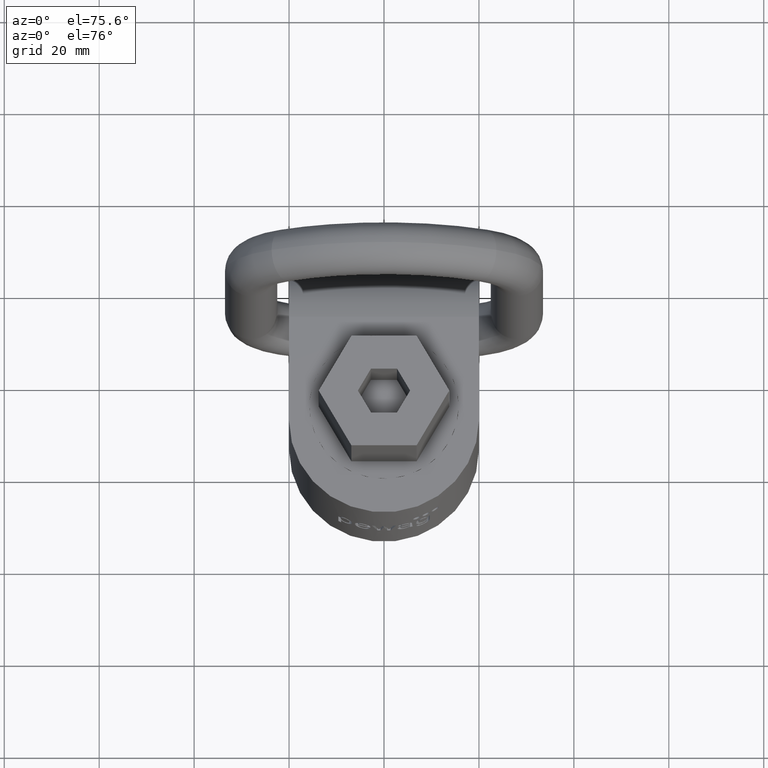
[diagram: clean part render]
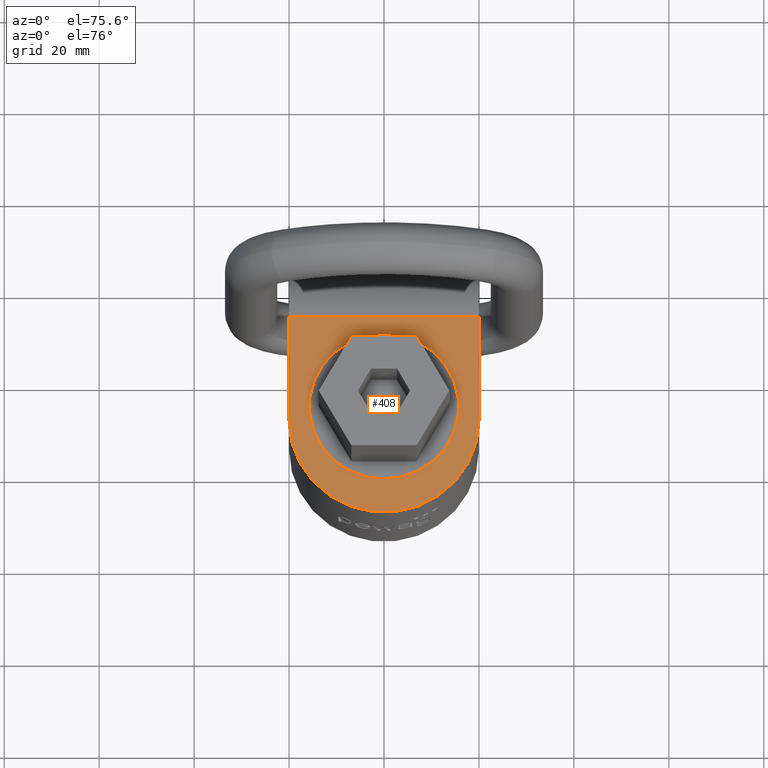
[diagram: same view with one face highlighted and labeled with its STEP entity id]
A machine part, auxiliary view. The second image highlights one B-rep face of the part: STEP entity #408.
In plain terms, the highlighted planar face has unit normal (0, -0, -1).
Its self-contained STEP definition (entity closure, byte-faithful):
#348=PLANE('',#2451);
#408=ADVANCED_FACE('',(#577,#578),#348,.F.);
#577=FACE_BOUND('',#636,.T.);
#578=FACE_BOUND('',#637,.T.);
#636=EDGE_LOOP('',(#1198,#1199,#1200,#1201));
#637=EDGE_LOOP('',(#1202));
#796=LINE('',#3805,#922);
#797=LINE('',#3807,#923);
#798=LINE('',#3809,#924);
#922=VECTOR('',#2627,1.);
#923=VECTOR('',#2628,1.);
#924=VECTOR('',#2629,1.);
#1100=CIRCLE('',#2446,20.);
#1102=CIRCLE('',#2450,15.746709909405);
#1198=ORIENTED_EDGE('',*,*,#2007,.T.);
#1199=ORIENTED_EDGE('',*,*,#2015,.F.);
#1200=ORIENTED_EDGE('',*,*,#2016,.T.);
#1201=ORIENTED_EDGE('',*,*,#2017,.T.);
#1202=ORIENTED_EDGE('',*,*,#2018,.F.);
#1797=VERTEX_POINT('',#3674);
#1798=VERTEX_POINT('',#3676);
#1804=VERTEX_POINT('',#3806);
#1805=VERTEX_POINT('',#3808);
#1806=VERTEX_POINT('',#3811);
#2007=EDGE_CURVE('',#1798,#1797,#1100,.T.);
#2015=EDGE_CURVE('',#1804,#1797,#796,.T.);
#2016=EDGE_CURVE('',#1804,#1805,#797,.T.);
#2017=EDGE_CURVE('',#1805,#1798,#798,.T.);
#2018=EDGE_CURVE('',#1806,#1806,#1102,.T.);
#2446=AXIS2_PLACEMENT_3D('',#3675,#2615,#2616);
#2450=AXIS2_PLACEMENT_3D('',#3810,#2630,#2631);
#2451=AXIS2_PLACEMENT_3D('',#3812,#2632,#2633);
#2615=DIRECTION('',(0.,3.26574604254958E-16,1.));
#2616=DIRECTION('',(0.,1.,-3.46944695195361E-16));
#2627=DIRECTION('',(0.,-1.,3.26574604254958E-16));
#2628=DIRECTION('',(-1.,0.,0.));
#2629=DIRECTION('',(0.,-1.,3.26574604254958E-16));
#2630=DIRECTION('',(0.,3.26574604254958E-16,1.));
#2631=DIRECTION('',(0.,1.,-2.20328371571856E-16));
#2632=DIRECTION('',(0.,-3.26574604254958E-16,-1.));
#2633=DIRECTION('',(0.,1.,-3.2612801348364E-16));
#3674=CARTESIAN_POINT('',(20.,-3.00000000000001,25.01));
#3675=CARTESIAN_POINT('',(0.,-3.00000000000001,25.01));
#3676=CARTESIAN_POINT('',(-20.,-3.00000000000001,25.01));
#3805=CARTESIAN_POINT('',(20.,19.495,25.01));
#3806=CARTESIAN_POINT('',(20.,19.495,25.01));
#3807=CARTESIAN_POINT('',(20.,19.495,25.01));
#3808=CARTESIAN_POINT('',(-20.,19.495,25.01));
#3809=CARTESIAN_POINT('',(-20.,19.495,25.01));
#3810=CARTESIAN_POINT('',(0.,3.77191155802136E-15,25.01));
#3811=CARTESIAN_POINT('',(0.,15.746709909405,25.01));
#3812=CARTESIAN_POINT('',(20.,19.495,25.01));